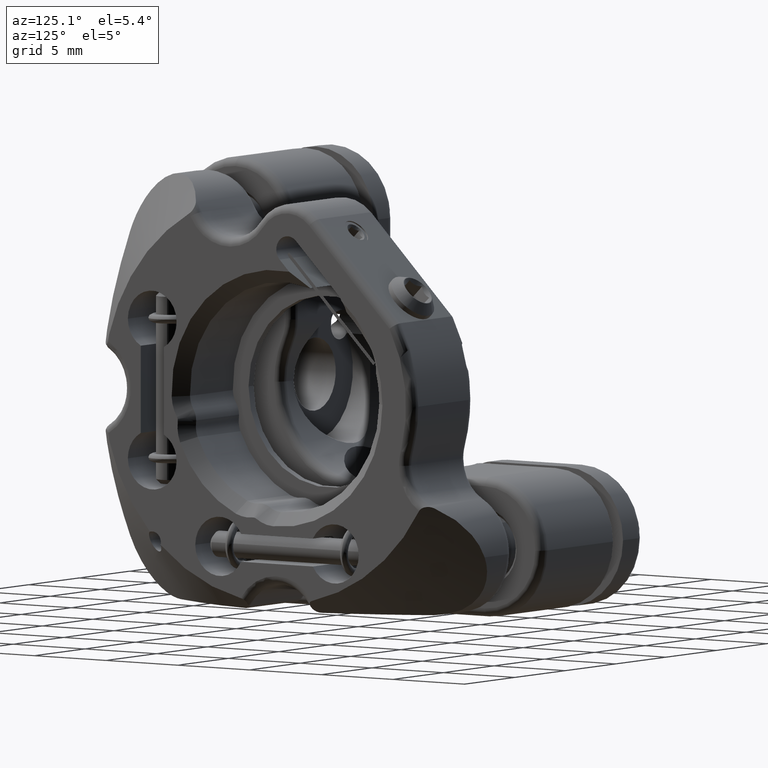
[diagram: clean part render]
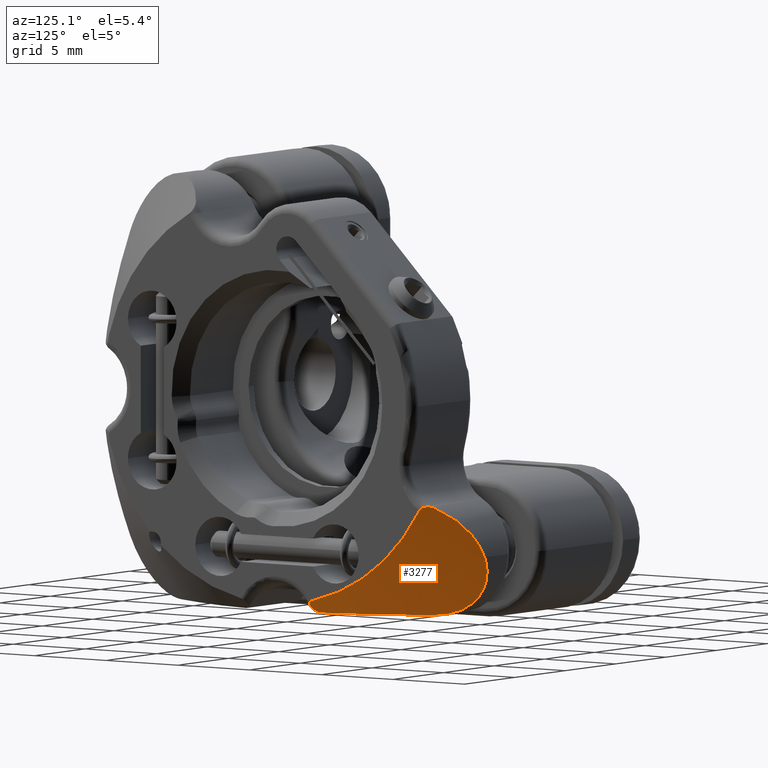
[diagram: same view with one face highlighted and labeled with its STEP entity id]
A machine part, auxiliary view. The second image highlights one B-rep face of the part: STEP entity #3277.
In plain terms, the highlighted conical surface has half-angle 46.641 deg.
Its self-contained STEP definition (entity closure, byte-faithful):
#289 = CARTESIAN_POINT ( 'NONE',  ( -1.200513093345265681, 16.37333118842451540, -6.594749130262419712 ) ) ;
#538 = CARTESIAN_POINT ( 'NONE',  ( -0.2360389693207352313, 22.64570729680257344, -0.2477411672040567558 ) ) ;
#710 = ORIENTED_EDGE ( 'NONE', *, *, #24383, .T. ) ;
#1958 = ORIENTED_EDGE ( 'NONE', *, *, #40338, .T. ) ;
#2332 = EDGE_CURVE ( 'NONE', #28065, #30208, #10862, .T. ) ;
#2586 = CARTESIAN_POINT ( 'NONE',  ( -3.099071954053890021, 24.85386177915299299, -2.451418178698235195 ) ) ;
#2631 = CARTESIAN_POINT ( 'NONE',  ( -4.172986905739735519, 23.40627712414478978, -5.965102817639199806 ) ) ;
#2746 = CARTESIAN_POINT ( 'NONE',  ( -3.409764790887256591, 21.39999999999999147, -6.594749130262421488 ) ) ;
#3277 = ADVANCED_FACE ( 'NONE', ( #16650 ), #19776, .T. ) ;
#3610 = CARTESIAN_POINT ( 'NONE',  ( -0.4499798659577466942, 22.99639093368358900, -0.08140884023755903809 ) ) ;
#4131 = B_SPLINE_CURVE_WITH_KNOTS ( 'NONE', 3,
 ( #3610, #20526, #40381, #6957, #538, #23829 ),
 .UNSPECIFIED., .F., .F.,
 ( 4, 2, 4 ),
 ( 5.396931743800773517E-05, 0.0003215663089732606768, 0.0005891633005085135507 ),
 .UNSPECIFIED. ) ;
#4247 = CARTESIAN_POINT ( 'NONE',  ( -3.475184874078669939, 24.89999999999999858, -3.094749130262419712 ) ) ;
#4318 = EDGE_CURVE ( 'NONE', #8774, #5660, #25632, .T. ) ;
#4673 = EDGE_LOOP ( 'NONE', ( #710, #1958, #25079, #8829, #35594, #37910, #39930, #9063, #36906 ) ) ;
#5118 = CARTESIAN_POINT ( 'NONE',  ( -0.9914323644261908708, 23.52816857434484632, -0.3028658315060314132 ) ) ;
#5660 = VERTEX_POINT ( 'NONE', #4247 ) ;
#5847 = CARTESIAN_POINT ( 'NONE',  ( -4.216809061831280125, 23.78015654135507262, -5.663628156275319014 ) ) ;
#5962 = CARTESIAN_POINT ( 'NONE',  ( -0.5380265334457188242, 23.10782579106562906, -0.07093995075199562017 ) ) ;
#5991 = CARTESIAN_POINT ( 'NONE',  ( -4.207588181644869252, 24.18949988260105499, -5.222094751841030558 ) ) ;
#6276 = CARTESIAN_POINT ( 'NONE',  ( -4.210458047504933354, 23.69109683820384760, -5.743380966500566842 ) ) ;
#6781 = DIRECTION ( 'NONE',  ( 0.0000000000000000000, 1.000000000000000000, -7.350523203291552539E-17 ) ) ;
#6957 = CARTESIAN_POINT ( 'NONE',  ( -0.2622733344168735048, 22.71301714204880184, -0.1849677706258925081 ) ) ;
#7377 = EDGE_CURVE ( 'NONE', #25067, #5660, #17366, .T. ) ;
#7862 = CARTESIAN_POINT ( 'NONE',  ( -7.434656593574200834, 12.39921822422551045, 5.605250869737584907 ) ) ;
#8483 = CARTESIAN_POINT ( 'NONE',  ( -1.242459560680704511, 23.73766915640019803, -0.4754534777972732051 ) ) ;
#8666 = CARTESIAN_POINT ( 'NONE',  ( -0.4375272252788944827, 14.84596008588461302, -6.156470762882722880 ) ) ;
#8774 = VERTEX_POINT ( 'NONE', #30381 ) ;
#8829 = ORIENTED_EDGE ( 'NONE', *, *, #23239, .F. ) ;
#9040 = CARTESIAN_POINT ( 'NONE',  ( -3.297593054856636563, 24.89999999999998792, -2.765517875120706126 ) ) ;
#9063 = ORIENTED_EDGE ( 'NONE', *, *, #31128, .T. ) ;
#9203 = CARTESIAN_POINT ( 'NONE',  ( -4.093218629305537704, 24.56095285092106550, -4.615607713692231329 ) ) ;
#9911 = CARTESIAN_POINT ( 'NONE',  ( -2.874644213949677507, 20.44547182859385259, -6.594749130262423265 ) ) ;
#10063 = CARTESIAN_POINT ( 'NONE',  ( -1.741868855709417074, 17.94747085072269144, -6.594749130262421488 ) ) ;
#10442 = DIRECTION ( 'NONE',  ( 1.000000000000000000, -4.732321137588042523E-23, 5.194348294811429819E-23 ) ) ;
#10724 = CIRCLE ( 'NONE', #38660, 11.80000000000000426 ) ;
#10862 = B_SPLINE_CURVE_WITH_KNOTS ( 'NONE', 3,
 ( #31450, #11733, #11870, #12018, #21340, #17994 ),
 .UNSPECIFIED., .F., .F.,
 ( 4, 2, 4 ),
 ( 3.216189232467314875E-07, 0.0002152051691539698267, 0.0004300887193846928943 ),
 .UNSPECIFIED. ) ;
#11251 = DIRECTION ( 'NONE',  ( 0.0000000000000000000, -1.000000000000000000, 8.931168598185843302E-17 ) ) ;
#11733 = CARTESIAN_POINT ( 'NONE',  ( -0.7805747494054577906, 14.99465419528947230, -6.496253144590979467 ) ) ;
#11870 = CARTESIAN_POINT ( 'NONE',  ( -0.8212453326793929254, 15.04358564105294960, -6.529805971320279845 ) ) ;
#12018 = CARTESIAN_POINT ( 'NONE',  ( -0.8911450735402283163, 15.16053009105253757, -6.579641871096151284 ) ) ;
#12713 = CARTESIAN_POINT ( 'NONE',  ( -3.636121628582231757, 21.82470402260841524, -6.575785992026432325 ) ) ;
#12850 = CARTESIAN_POINT ( 'NONE',  ( -3.409764790887256591, 21.39999999999999147, -6.594749130262421488 ) ) ;
#13272 = CARTESIAN_POINT ( 'NONE',  ( -2.380485245804484062, 19.46863130121392160, -6.594749130262421488 ) ) ;
#13426 = CARTESIAN_POINT ( 'NONE',  ( -0.9345094188007704306, 15.29807621135330464, -6.594749130262421488 ) ) ;
#13463 = CARTESIAN_POINT ( 'NONE',  ( -0.6106814681657610766, 14.87889352721875014, -6.336764365787136200 ) ) ;
#14612 = EDGE_CURVE ( 'NONE', #16515, #19499, #10724, .T. ) ;
#15068 = CARTESIAN_POINT ( 'NONE',  ( -0.7360389693210821482, 23.30016173108878519, -0.1554659870954266943 ) ) ;
#15494 = CARTESIAN_POINT ( 'NONE',  ( -0.4499798659577466942, 22.99639093368358900, -0.08140884023755903809 ) ) ;
#15583 = EDGE_CURVE ( 'NONE', #25067, #36797, #41089, .T. ) ;
#15920 = CARTESIAN_POINT ( 'NONE',  ( -3.881411383447523455, 24.79765914470320709, -3.963799753291834982 ) ) ;
#16197 = CARTESIAN_POINT ( 'NONE',  ( -3.829813242344188851, 22.25545258080273214, -6.495659599795181371 ) ) ;
#16515 = VERTEX_POINT ( 'NONE', #28907 ) ;
#16549 = CARTESIAN_POINT ( 'NONE',  ( -0.2360389693210797890, 22.60060241728594477, -0.3253275628924724439 ) ) ;
#16650 = FACE_OUTER_BOUND ( 'NONE', #4673, .T. ) ;
#17057 = CARTESIAN_POINT ( 'NONE',  ( -1.546333373122588339, 17.43097385510327157, -6.594749130262421488 ) ) ;
#17366 = B_SPLINE_CURVE_WITH_KNOTS ( 'NONE', 3,
 ( #15068, #5118, #8483, #32235, #38926, #35322, #22130, #2586, #9040, #19086 ),
 .UNSPECIFIED., .F., .F.,
 ( 4, 2, 2, 2, 4 ),
 ( 2.891096848568224689E-07, 0.001107844617278176897, 0.002215400124871497005, 0.003322955632464816896, 0.004430511140058138522 ),
 .UNSPECIFIED. ) ;
#17994 = CARTESIAN_POINT ( 'NONE',  ( -0.9345094188007704306, 15.29807621135330464, -6.594749130262421488 ) ) ;
#18868 = CARTESIAN_POINT ( 'NONE',  ( -0.2360389693210797890, 15.15375290960004229, -5.868743145733606781 ) ) ;
#19086 = CARTESIAN_POINT ( 'NONE',  ( -3.475184874078669939, 24.89999999999999858, -3.094749130262419712 ) ) ;
#19134 = CARTESIAN_POINT ( 'NONE',  ( -0.2466446333829807880, 15.03499135826177380, -5.908249232950908869 ) ) ;
#19499 = VERTEX_POINT ( 'NONE', #16549 ) ;
#19545 = CARTESIAN_POINT ( 'NONE',  ( -4.058089924363343926, 22.90141135486719293, -6.264637503023666731 ) ) ;
#19776 = CONICAL_SURFACE ( 'NONE', #20840, 19.42325303688898330, 0.8140395746070190341 ) ;
#20526 = CARTESIAN_POINT ( 'NONE',  ( -0.3945890075860217783, 22.92628637916457990, -0.08799490183783173491 ) ) ;
#20840 = AXIS2_PLACEMENT_3D ( 'NONE', #7862, #37924, #11251 ) ;
#20962 = VERTEX_POINT ( 'NONE', #13463 ) ;
#21340 = CARTESIAN_POINT ( 'NONE',  ( -0.9189730393167416800, 15.22690566618526020, -6.594749130262419712 ) ) ;
#22130 = CARTESIAN_POINT ( 'NONE',  ( -2.673437018290663048, 24.69050987922380003, -1.863659922501688770 ) ) ;
#22174 = CARTESIAN_POINT ( 'NONE',  ( -0.2905149622526699837, 14.94188276579731678, -5.976737580200388145 ) ) ;
#22534 = CARTESIAN_POINT ( 'NONE',  ( -0.6967894679875723529, 14.91674767260423984, -6.422054250377769336 ) ) ;
#22691 = CARTESIAN_POINT ( 'NONE',  ( -0.9345094188007704306, 15.29807621135330464, -6.594749130262421488 ) ) ;
#23020 = B_SPLINE_CURVE_WITH_KNOTS ( 'NONE', 3,
 ( #2746, #9911, #13272, #10063, #17057, #289, #23724, #13426 ),
 .UNSPECIFIED., .F., .F.,
 ( 4, 2, 2, 4 ),
 ( 0.005606519423146385031, 0.008889156181231011589, 0.01053047456027333094, 0.01217179293931565029 ),
 .UNSPECIFIED. ) ;
#23108 = CARTESIAN_POINT ( 'NONE',  ( -0.6106814681657610766, 14.87889352721875014, -6.336764365787136200 ) ) ;
#23239 = EDGE_CURVE ( 'NONE', #8774, #30208, #23020, .T. ) ;
#23724 = CARTESIAN_POINT ( 'NONE',  ( -1.052194852527182922, 15.83718099347161612, -6.594749130262422376 ) ) ;
#23829 = CARTESIAN_POINT ( 'NONE',  ( -0.2360389693210797890, 22.60060241728594477, -0.3253275628924724439 ) ) ;
#24383 = EDGE_CURVE ( 'NONE', #16515, #20962, #42465, .T. ) ;
#25067 = VERTEX_POINT ( 'NONE', #43152 ) ;
#25079 = ORIENTED_EDGE ( 'NONE', *, *, #2332, .T. ) ;
#25632 = B_SPLINE_CURVE_WITH_KNOTS ( 'NONE', 3,
 ( #12850, #36051, #12713, #16197, #39377, #19545, #42732, #2631, #26210, #6276, #5847, #25922, #5991, #29112, #9203, #35760, #15920, #39109, #36490, #36048 ),
 .UNSPECIFIED., .F., .F.,
 ( 4, 2, 2, 2, 2, 2, 2, 2, 2, 4 ),
 ( 2.265592398496652121E-07, 0.0007183409274591842511, 0.001436455295678518889, 0.002154569663897853635, 0.002513626848007525453, 0.002872684032117197271, 0.003590798400336540474, 0.004308912768555884544, 0.005027027136775228180, 0.005745141504994572684 ),
 .UNSPECIFIED. ) ;
#25889 = CARTESIAN_POINT ( 'NONE',  ( -0.6374787658499649901, 23.21217041535849646, -0.09858214070330924284 ) ) ;
#25922 = CARTESIAN_POINT ( 'NONE',  ( -4.222357777002390122, 24.03470007431637967, -5.411102722651687458 ) ) ;
#26210 = CARTESIAN_POINT ( 'NONE',  ( -4.188632807825502624, 23.50447385258946298, -5.893957077116172449 ) ) ;
#26315 = CARTESIAN_POINT ( 'NONE',  ( -0.7360389693210809270, 14.95324324932459881, -6.456812975873257976 ) ) ;
#28065 = VERTEX_POINT ( 'NONE', #32423 ) ;
#28856 = CARTESIAN_POINT ( 'NONE',  ( -0.5252598161383688069, 14.85407314763927467, -6.249528047253638974 ) ) ;
#28907 = CARTESIAN_POINT ( 'NONE',  ( -0.2360389693210797890, 15.15375290960004229, -5.868743145733606781 ) ) ;
#29112 = CARTESIAN_POINT ( 'NONE',  ( -4.142657605873953486, 24.45235572545059455, -4.823920467634729370 ) ) ;
#29354 = CARTESIAN_POINT ( 'NONE',  ( -0.6541661340088251730, 14.89152856630430755, -6.381172804055033509 ) ) ;
#30208 = VERTEX_POINT ( 'NONE', #22691 ) ;
#30381 = CARTESIAN_POINT ( 'NONE',  ( -3.409764790887256591, 21.39999999999999147, -6.594749130262421488 ) ) ;
#31128 = EDGE_CURVE ( 'NONE', #36797, #19499, #4131, .T. ) ;
#31450 = CARTESIAN_POINT ( 'NONE',  ( -0.7360389693210809270, 14.95324324932459881, -6.456812975873257976 ) ) ;
#32108 = CARTESIAN_POINT ( 'NONE',  ( -0.7360389693210821482, 23.30016173108878519, -0.1554659870954266943 ) ) ;
#32235 = CARTESIAN_POINT ( 'NONE',  ( -1.736635076643456177, 24.11756027267708191, -0.8720766478271653188 ) ) ;
#32423 = CARTESIAN_POINT ( 'NONE',  ( -0.7360389693210809270, 14.95324324932459881, -6.456812975873257976 ) ) ;
#32727 = CARTESIAN_POINT ( 'NONE',  ( -0.4499798659577466942, 22.99639093368358900, -0.08140884023755903809 ) ) ;
#33494 = CARTESIAN_POINT ( 'NONE',  ( -0.2360389693210797890, 12.39921822422551045, 5.605250869737584907 ) ) ;
#35322 = CARTESIAN_POINT ( 'NONE',  ( -2.449874487384732902, 24.57502849141624068, -1.594396778195944941 ) ) ;
#35372 = CARTESIAN_POINT ( 'NONE',  ( -0.6106814681657610766, 14.87889352721875014, -6.336764365787136200 ) ) ;
#35594 = ORIENTED_EDGE ( 'NONE', *, *, #4318, .T. ) ;
#35760 = CARTESIAN_POINT ( 'NONE',  ( -3.961459964843018433, 24.73511444005367466, -4.181784285298197013 ) ) ;
#36048 = CARTESIAN_POINT ( 'NONE',  ( -3.475184874078669939, 24.89999999999999858, -3.094749130262419712 ) ) ;
#36051 = CARTESIAN_POINT ( 'NONE',  ( -3.528228367416215594, 21.61131091936239201, -6.594749130262419712 ) ) ;
#36490 = CARTESIAN_POINT ( 'NONE',  ( -3.590374341695658611, 24.89999999999998792, -3.308294850829835543 ) ) ;
#36797 = VERTEX_POINT ( 'NONE', #32727 ) ;
#36906 = ORIENTED_EDGE ( 'NONE', *, *, #14612, .F. ) ;
#37910 = ORIENTED_EDGE ( 'NONE', *, *, #7377, .F. ) ;
#37924 = DIRECTION ( 'NONE',  ( -1.000000000000000000, 4.732321137588042523E-23, -5.194348294811429819E-23 ) ) ;
#38290 = B_SPLINE_CURVE_WITH_KNOTS ( 'NONE', 3,
 ( #23108, #29354, #22534, #26315 ),
 .UNSPECIFIED., .F., .F.,
 ( 4, 4 ),
 ( 0.0003326442005013381296, 0.0005215746434597283345 ),
 .UNSPECIFIED. ) ;
#38660 = AXIS2_PLACEMENT_3D ( 'NONE', #33494, #10442, #6781 ) ;
#38926 = CARTESIAN_POINT ( 'NONE',  ( -1.981990757078738952, 24.28920204832071050, -1.098659296202909363 ) ) ;
#39109 = CARTESIAN_POINT ( 'NONE',  ( -3.696101152520592237, 24.88026259139140706, -3.527310043816437091 ) ) ;
#39377 = CARTESIAN_POINT ( 'NONE',  ( -3.916460636110465465, 22.47562945520792610, -6.433229267597403656 ) ) ;
#39930 = ORIENTED_EDGE ( 'NONE', *, *, #15583, .T. ) ;
#40338 = EDGE_CURVE ( 'NONE', #20962, #28065, #38290, .T. ) ;
#40381 = CARTESIAN_POINT ( 'NONE',  ( -0.3423903359681692571, 22.85335344745594099, -0.1066965761829767462 ) ) ;
#41089 = B_SPLINE_CURVE_WITH_KNOTS ( 'NONE', 3,
 ( #32108, #25889, #5962, #15494 ),
 .UNSPECIFIED., .F., .F.,
 ( 4, 4 ),
 ( 2.889950739909280970E-07, 0.0004275455292852341172 ),
 .UNSPECIFIED. ) ;
#41781 = CARTESIAN_POINT ( 'NONE',  ( -0.2360389693210798445, 15.09293530599422439, -5.883343484411462931 ) ) ;
#42181 = CARTESIAN_POINT ( 'NONE',  ( -0.3236889795757076360, 14.90753039792930679, -6.020084357298925326 ) ) ;
#42465 = B_SPLINE_CURVE_WITH_KNOTS ( 'NONE', 3,
 ( #18868, #41781, #19134, #22174, #42181, #8666, #28856, #35372 ),
 .UNSPECIFIED., .F., .F.,
 ( 4, 2, 2, 4 ),
 ( 0.0001465338901593741237, 0.0003324093365642491081, 0.0005182847829691241467, 0.0008900356757788757418 ),
 .UNSPECIFIED. ) ;
#42732 = CARTESIAN_POINT ( 'NONE',  ( -4.113803772720412866, 23.10778430744928258, -6.159024822370887442 ) ) ;
#43152 = CARTESIAN_POINT ( 'NONE',  ( -0.7360389693210821482, 23.30016173108878519, -0.1554659870954266943 ) ) ;